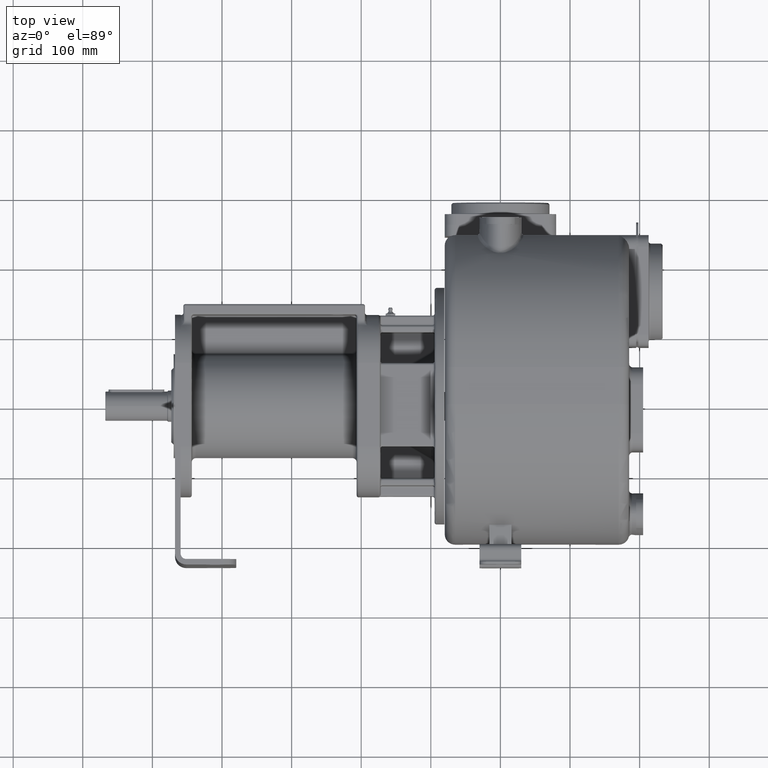
[diagram: clean part render]
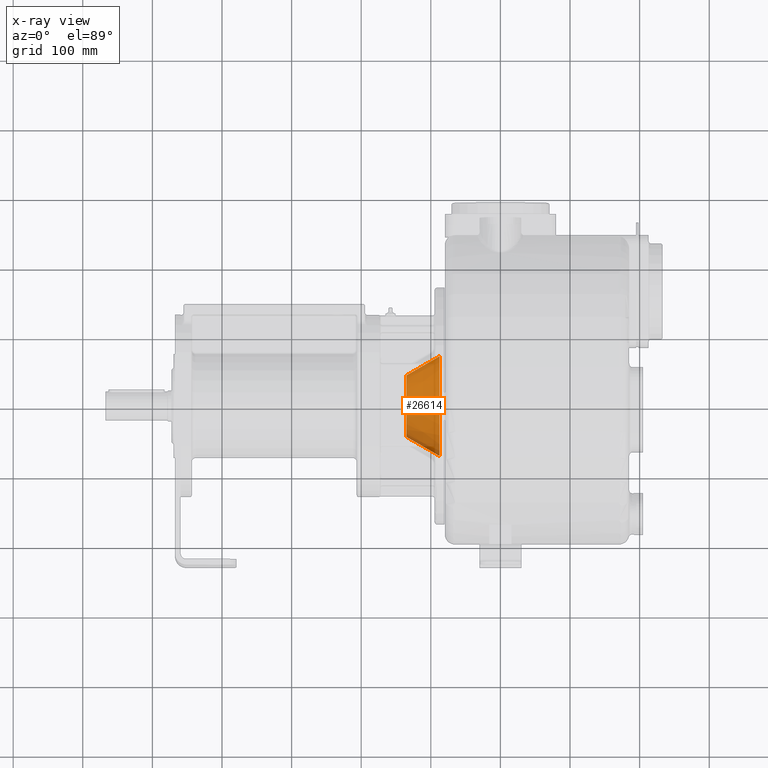
[diagram: x-ray — body ghosted, one internal face saturated and labeled with its STEP entity id]
A machine part, top view, then the same camera in x-ray: the body is ghosted and one INTERNAL B-rep face — a face not visible from any outside direction — is saturated and labeled: STEP entity #26614.
In plain terms, the highlighted conical surface has half-angle 30 deg.
Its self-contained STEP definition (entity closure, byte-faithful):
#5290=DIRECTION('',(-8.660254037844E-1,5.E-1,0.E0));
#5291=VECTOR('',#5290,5.484827557301E1);
#5292=CARTESIAN_POINT('',(-8.75E1,1.283473595216E2,0.E0));
#5293=LINE('',#5292,#5291);
#5294=CARTESIAN_POINT('',(-1.35E2,2.E2,0.E0));
#5295=DIRECTION('',(-1.E0,0.E0,0.E0));
#5296=DIRECTION('',(0.E0,1.E0,0.E0));
#5297=AXIS2_PLACEMENT_3D('',#5294,#5295,#5296);
#5299=DIRECTION('',(-8.660254037844E-1,-5.E-1,0.E0));
#5300=VECTOR('',#5299,5.484827557301E1);
#5301=CARTESIAN_POINT('',(-8.75E1,2.716526404784E2,0.E0));
#5302=LINE('',#5301,#5300);
#5303=CARTESIAN_POINT('',(-8.75E1,2.E2,0.E0));
#5304=DIRECTION('',(1.E0,0.E0,0.E0));
#5305=DIRECTION('',(0.E0,-1.E0,0.E0));
#5306=AXIS2_PLACEMENT_3D('',#5303,#5304,#5305);
#20298=CARTESIAN_POINT('',(-8.75E1,1.283473595216E2,0.E0));
#20299=CARTESIAN_POINT('',(-8.75E1,2.716526404784E2,0.E0));
#20300=VERTEX_POINT('',#20298);
#20301=VERTEX_POINT('',#20299);
#20302=CARTESIAN_POINT('',(-1.35E2,1.557714973081E2,0.E0));
#20303=VERTEX_POINT('',#20302);
#20304=CARTESIAN_POINT('',(-1.35E2,2.442285026919E2,0.E0));
#20305=VERTEX_POINT('',#20304);
#26600=CARTESIAN_POINT('',(-1.1125E2,2.E2,0.E0));
#26601=DIRECTION('',(1.E0,0.E0,0.E0));
#26602=DIRECTION('',(0.E0,-1.E0,0.E0));
#26603=AXIS2_PLACEMENT_3D('',#26600,#26601,#26602);
#26604=CONICAL_SURFACE('',#26603,5.794057158515E1,3.E1);
#26606=ORIENTED_EDGE('',*,*,#26605,.T.);
#26608=ORIENTED_EDGE('',*,*,#26607,.F.);
#26610=ORIENTED_EDGE('',*,*,#26609,.F.);
#26611=ORIENTED_EDGE('',*,*,#26594,.F.);
#26612=EDGE_LOOP('',(#26606,#26608,#26610,#26611));
#26613=FACE_OUTER_BOUND('',#26612,.F.);
#26614=ADVANCED_FACE('',(#26613),#26604,.F.);
#5298=CIRCLE('',#5297,4.422850269190E1);
#5307=CIRCLE('',#5306,7.165264047840E1);
#26594=EDGE_CURVE('',#20300,#20301,#5307,.T.);
#26605=EDGE_CURVE('',#20300,#20303,#5293,.T.);
#26607=EDGE_CURVE('',#20305,#20303,#5298,.T.);
#26609=EDGE_CURVE('',#20301,#20305,#5302,.T.);